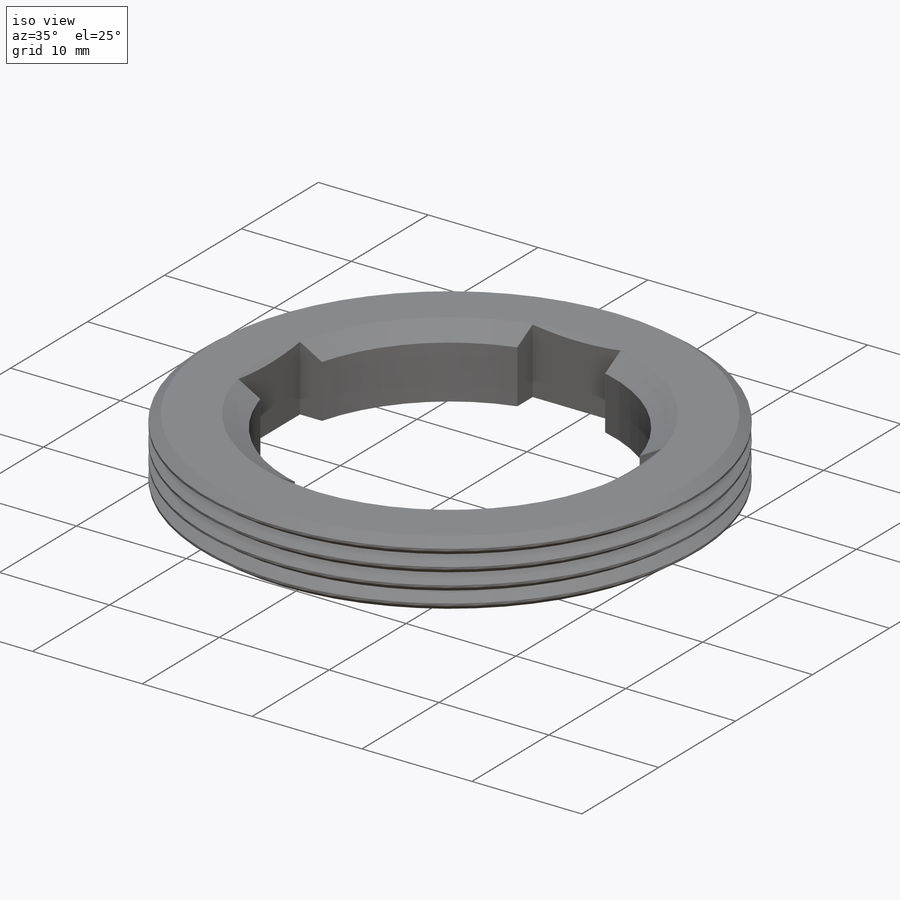
[diagram: iso view]
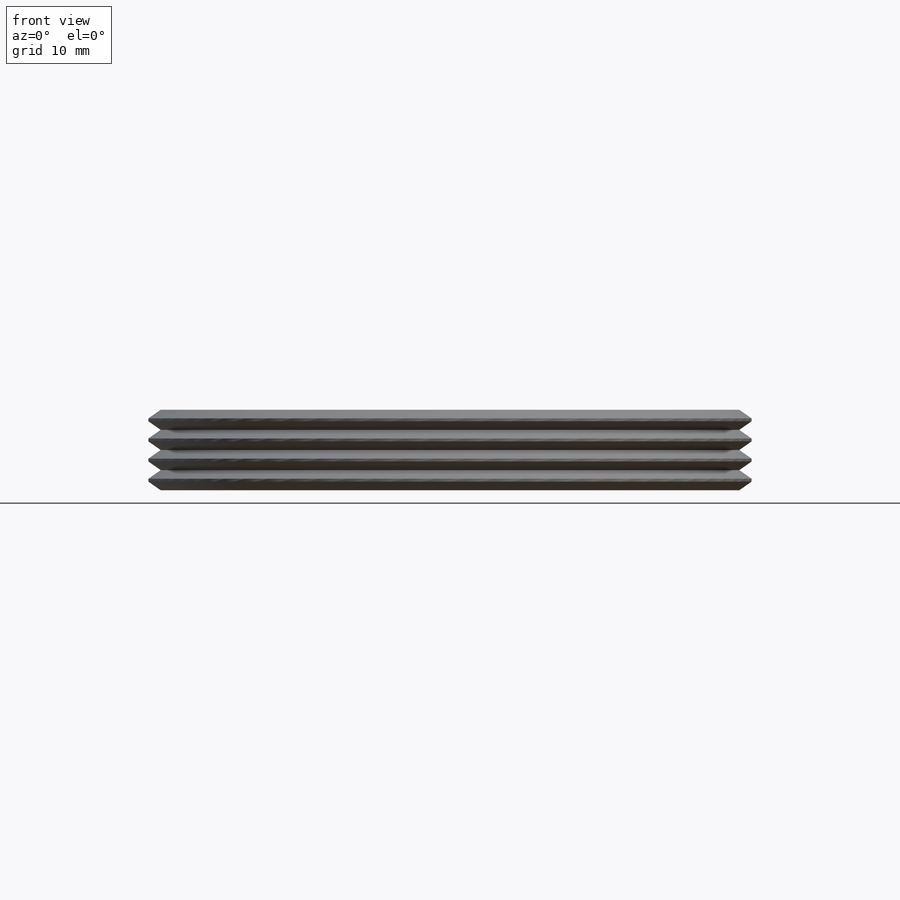
[diagram: front view]
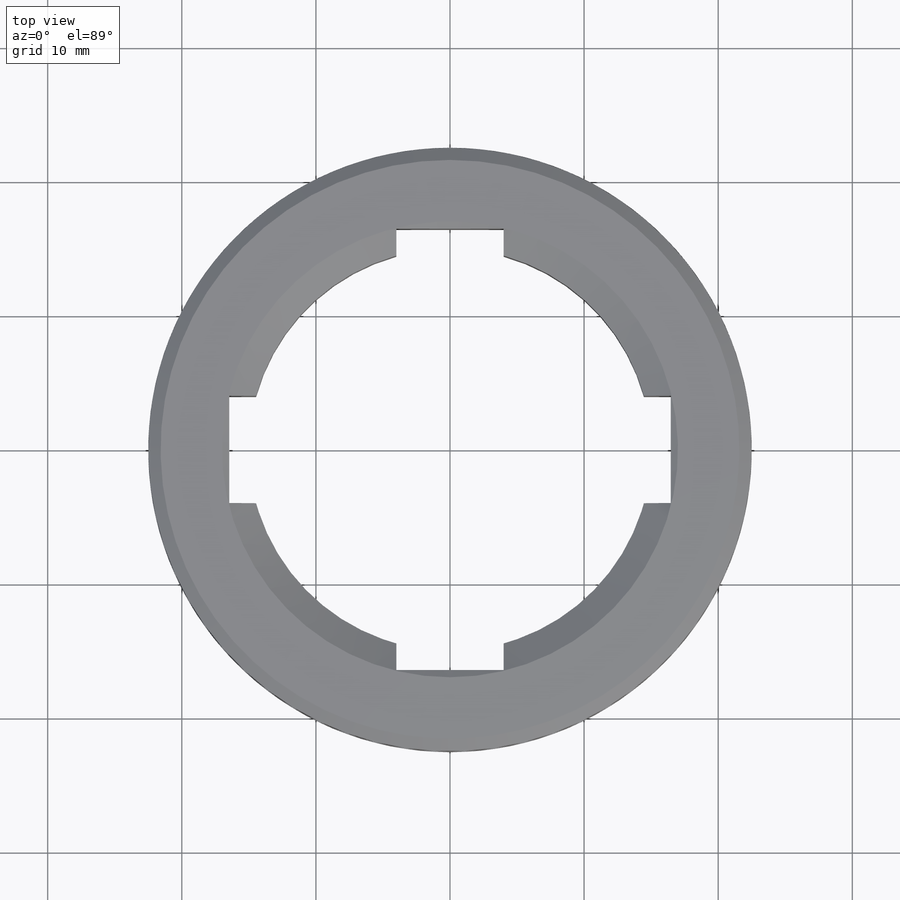
[diagram: top view]
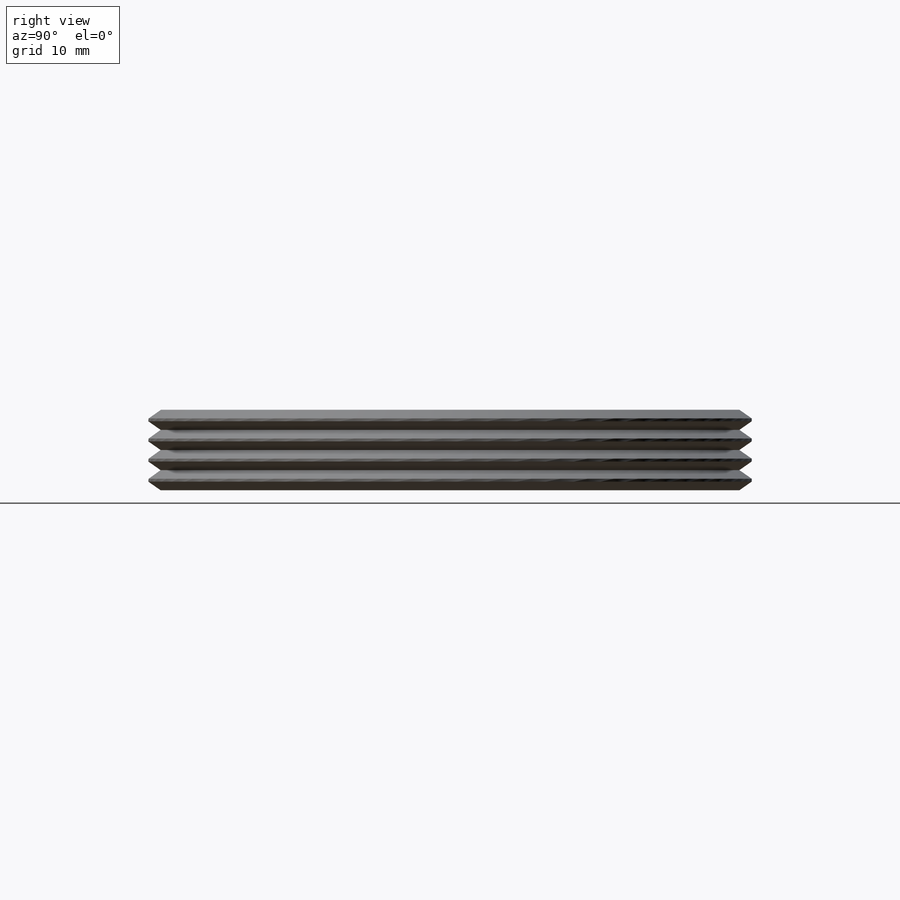
[diagram: right view]
SOLIDWORKS PART (.sldprt)
format: sldprt  version: not decoded by parser v0  size: 217,600 bytes
history: native  units: mm
features: sketch x4, plane x3, cut_revolve x2, material x1, extrude x1, pattern_linear x1, cut_extrude x1, pattern_circular x1 + 4 further entries (+8 scaffold rows collapsed)
feature tree (26):
  scaffold x8  (default folders/planes/origin — collapsed)
  material  " 09Г2С ГОСТ 4543-71"
  plane  "Спереди"
  plane  "Сверху"
  plane  "Слева"
  "Начало координат"
  "PTricksFreeParameters"
  "PTricksEqu"
  "PTricksFreeParameters"
  sketch  "Эскиз1"  dims[D1=30.0mm D2=45.0mm D3=7.5mm]
  extrude  "Вытянуть1"  Depth=6mm
  sketch  "Эскиз2"  dims[c1.D1=~6.863742mm c2.D1=30.0deg c2.D2=34.0mm c2.D3=~1.566911mm c3.D3=70.0deg c3.D4=43.16mm c3.D5=50.0mm c3.D6=~0.644191mm]
  cut_revolve  "М45х1,5 1й зуб"  Angle=360deg
  sketch  "Эскиз3"  dims[D1=0.0mm]
  cut_revolve  "Вырез-Повернуть2"  Angle=360deg
  pattern_linear  "М45х1,5 массив1"  Count1=5 Count2=1 Spacing1=1.5mm Spacing2=10mm
  sketch  "Эскиз4"  dims[D1=8.0mm D2=2.0mm]
  cut_extrude  "Вытянуть2"  [1 undecoded]
  pattern_circular  "Круговой массив1"  Count=4 Angle=360deg
decode coverage: 9 of 10 modeling features carry decoded parameters; 4 rows unclassified (native names shown)
note: ~ marks probable driven/reference dimensions
note: 1 parameter value undecoded
note: suppression state not decoded; provenance and decode notes live in map.json
